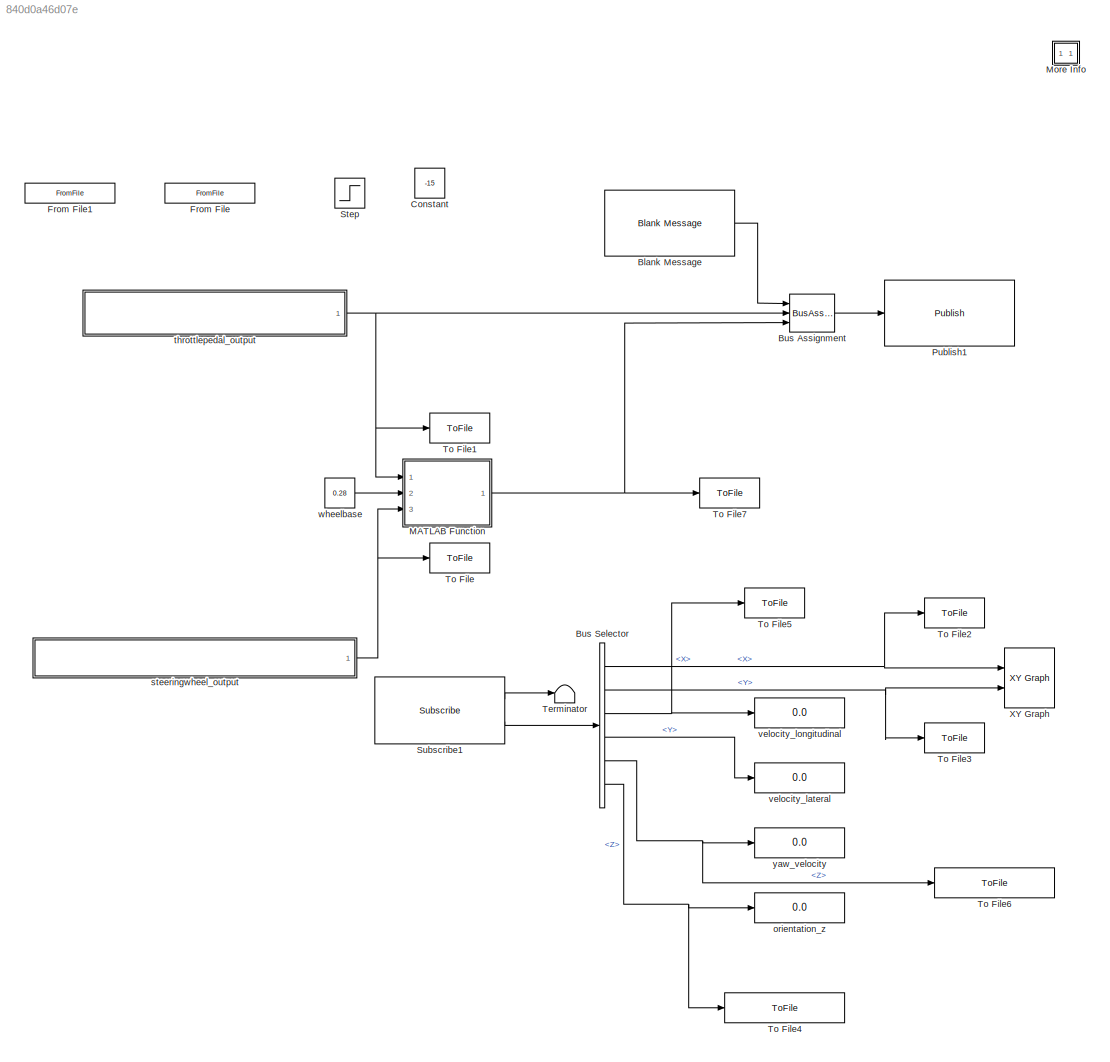
MODEL slx_840d0a46d07e
KIND model
CONFIG AbsTol = auto
CONFIG EnableMultiTasking = on
CONFIG FixedStep = 0.01
CONFIG MaxStep = auto
CONFIG MinStep = auto
CONFIG RelTol = 1e-3
CONFIG SampleTimeConstraint = Unconstrained
CONFIG Solver = FixedStepDiscrete
CONFIG SolverName = FixedStepDiscrete
CONFIG StartTime = 0.0
CONFIG StopTime = Inf
BLOCK [Reference] Blank Message  REF=robotlib/Blank Message
  Ports = [0, 1]
  SourceBlock = robotlib/Blank Message
  SourceProductBaseCode = RR
  SourceProductName = ROS Toolbox
  SourceType = ROS Blank Message
BLOCK [BusAssignment] Bus Assignment
  AssignedSignals = Linear.X,Angular.Z
  DialogController = Simulink.DDGSource_BusAssignment
  Ports = [3, 1]
BLOCK [BusSelector] Bus Selector
  DialogController = Simulink.DDGSource_BusSelector
  OutputAsBus = off
  OutputSignals = Pose.Pose.Position.X,Pose.Pose.Position.Y,Twist.Twist.Linear.X,Twist.Twist.Linear.Y,Twist.Twist.Angular.Z,Pose.Pose.Orientation.Z
  Ports = [1, 6]
BLOCK [Constant] Constant
  Commented = on
  Value = -15
BLOCK [FromFile] From File
  Commented = on
  FileName = throttle_save_repeat.mat
BLOCK [FromFile] From File1
  Commented = on
  FileName = steer_save_repeat.mat
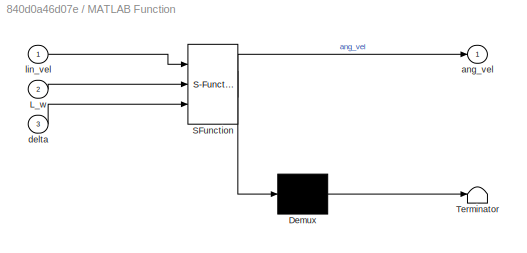
BLOCK [SubSystem] MATLAB Function
  ErrorFcn = Stateflow.Translate.translate
  PermitHierarchicalResolution = ExplicitOnly
  Ports = [3, 1]
  RequestExecContextInheritance = off
  SFBlockType = MATLAB Function
  TreatAsAtomicUnit = on
BLOCK [Demux] MATLAB Function/ Demux 
  Outputs = 1
  Ports = [1, 1]
BLOCK [S-Function] MATLAB Function/ SFunction 
  EnableBusSupport = on
  FunctionName = sf_sfun
  PortCounts = [3 2]
  Ports = [3, 2]
  SFcnIsStateOwnerBlock = off
  SFunctionDeploymentMode = off
  Tag = Stateflow S-Function 2
BLOCK [Terminator] MATLAB Function/ Terminator 
BLOCK [Inport] MATLAB Function/L_w
  IconDisplay = Port number
  Port = 2
BLOCK [Outport] MATLAB Function/ang_vel
  IconDisplay = Port number
BLOCK [Inport] MATLAB Function/delta
  IconDisplay = Port number
  Port = 3
BLOCK [Inport] MATLAB Function/lin_vel
  IconDisplay = Port number
BLOCK [SubSystem] More Info
  OpenFcn = showdemo(bdroot(gcb))
  Ports = []
  RequestExecContextInheritance = off
BLOCK [Reference] Publish1  REF=robotlib/Publish
  Ports = [1]
  SourceBlock = robotlib/Publish
  SourceProductBaseCode = RR
  SourceProductName = ROS Toolbox
  SourceType = ROS Publish
BLOCK [Step] Step
  After = 0.5
  Commented = on
  SampleTime = 0
  Time = 10
BLOCK [Reference] Subscribe1  REF=robotlib/Subscribe
  Ports = [0, 2]
  SourceBlock = robotlib/Subscribe
  SourceProductBaseCode = RR
  SourceProductName = ROS Toolbox
  SourceType = ROS Subscribe
BLOCK [Terminator] Terminator
BLOCK [ToFile] To File
  Filename = steer_save_2.mat
  MatrixName = steer_save
  Ports = [1]
BLOCK [ToFile] To File1
  Filename = throttle_save_2.mat
  MatrixName = throttle_save
  Ports = [1]
BLOCK [ToFile] To File2
  Filename = x_kincom.mat
  MatrixName = x_line
  Ports = [1]
BLOCK [ToFile] To File3
  Filename = y_kincom.mat
  MatrixName = y_line
  Ports = [1]
BLOCK [ToFile] To File4
  Filename = theta_kincom.mat
  MatrixName = theta
  Ports = [1]
BLOCK [ToFile] To File5
  Filename = vel_kincom.mat
  MatrixName = vel
  Ports = [1]
BLOCK [ToFile] To File6
  Filename = yaw_kincom.mat
  MatrixName = yaw
  Ports = [1]
BLOCK [ToFile] To File7
  Filename = ang_vel_kincom.mat
  MatrixName = ang_vel
  Ports = [1]
BLOCK [Reference] XY Graph  REF=simulink/Sinks/XY Graph
  Ports = [2]
  SourceBlock = simulink/Sinks/XY Graph
  SourceProductBaseCode = SL
  SourceProductName = Simulink
  SourceType = XY scope.
BLOCK [Display] orientation_z
  Decimation = 1
  Ports = [1]
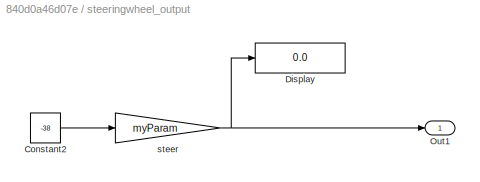
BLOCK [SubSystem] steeringwheel_output
  Ports = [0, 1]
  RequestExecContextInheritance = off
BLOCK [Constant] steeringwheel_output/Constant2
  Value = -38
BLOCK [Display] steeringwheel_output/Display
  Decimation = 1
  Ports = [1]
BLOCK [Outport] steeringwheel_output/Out1
  IconDisplay = Port number
BLOCK [Gain] steeringwheel_output/steer 
  Gain = myParam
  OutDataTypeStr = Inherit: Inherit via internal rule
  ParamDataTypeStr = Inherit: Inherit via internal rule
  SaturateOnIntegerOverflow = off
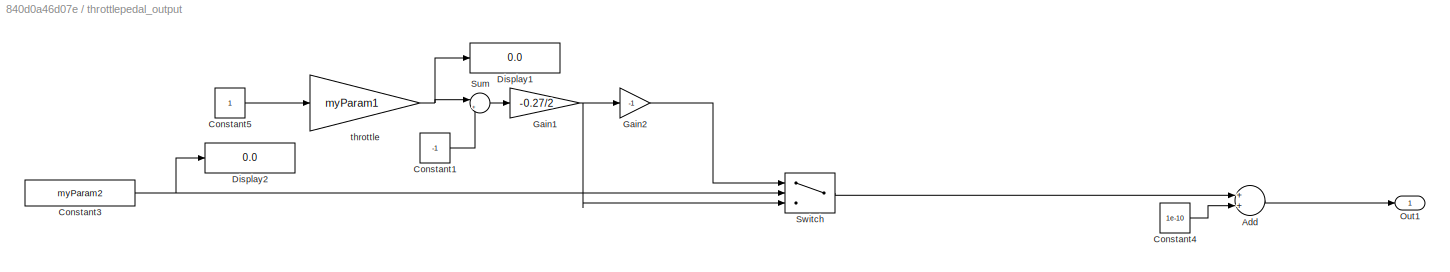
BLOCK [SubSystem] throttlepedal_output
  Ports = [0, 1]
  RequestExecContextInheritance = off
BLOCK [Sum] throttlepedal_output/Add
  InputSameDT = off
  OutDataTypeStr = Inherit: Inherit via internal rule
  Ports = [2, 1]
  SaturateOnIntegerOverflow = off
BLOCK [Constant] throttlepedal_output/Constant1
  Value = -1
BLOCK [Constant] throttlepedal_output/Constant3
  Value = myParam2
BLOCK [Constant] throttlepedal_output/Constant4
  Value = 1e-10
BLOCK [Constant] throttlepedal_output/Constant5
BLOCK [Display] throttlepedal_output/Display1
  Decimation = 1
  Ports = [1]
BLOCK [Display] throttlepedal_output/Display2
  Decimation = 1
  Ports = [1]
BLOCK [Gain] throttlepedal_output/Gain1
  Gain = -0.27/2
  OutDataTypeStr = Inherit: Inherit via internal rule
  ParamDataTypeStr = Inherit: Inherit via internal rule
  SaturateOnIntegerOverflow = off
BLOCK [Gain] throttlepedal_output/Gain2
  Gain = -1
  OutDataTypeStr = Inherit: Inherit via internal rule
  ParamDataTypeStr = Inherit: Inherit via internal rule
  SaturateOnIntegerOverflow = off
BLOCK [Outport] throttlepedal_output/Out1
  IconDisplay = Port number
BLOCK [Sum] throttlepedal_output/Sum
  IconShape = round
  InputSameDT = off
  Inputs = |++
  OutDataTypeStr = Inherit: Inherit via internal rule
  Ports = [2, 1]
  SaturateOnIntegerOverflow = off
BLOCK [Switch] throttlepedal_output/Switch
  Criteria = u2 > Threshold
  InputSameDT = off
  SaturateOnIntegerOverflow = off
BLOCK [Gain] throttlepedal_output/throttle
  Gain = myParam1
  OutDataTypeStr = Inherit: Inherit via internal rule
  ParamDataTypeStr = Inherit: Inherit via internal rule
  SaturateOnIntegerOverflow = off
BLOCK [Display] velocity_lateral
  Decimation = 1
  Ports = [1]
BLOCK [Display] velocity_longitudinal
  Decimation = 1
  Ports = [1]
BLOCK [Constant] wheelbase
  Value = 0.28
BLOCK [Display] yaw_velocity
  Decimation = 1
  Ports = [1]
LINE Blank Message:1 -> Bus Assignment:1
LINE Bus Assignment:1 -> Publish1:1
NET Bus Selector:1 -> To File2:1, XY Graph:1
NET Bus Selector:2 -> To File3:1, XY Graph:2
NET Bus Selector:3 -> To File5:1, velocity_longitudinal:1
LINE Bus Selector:4 -> velocity_lateral:1
NET Bus Selector:5 -> To File6:1, yaw_velocity:1
NET Bus Selector:6 -> To File4:1, orientation_z:1
NET MATLAB Function:1 -> Bus Assignment:3, To File7:1
LINE Subscribe1:1 -> Terminator:1
LINE Subscribe1:2 -> Bus Selector:1
LINE steeringwheel_output/Constant2:1 -> steeringwheel_output/steer :1
NET steeringwheel_output/steer :1 -> steeringwheel_output/Display:1, steeringwheel_output/Out1:1
NET steeringwheel_output:1 -> MATLAB Function:3, To File:1
LINE throttlepedal_output/Add:1 -> throttlepedal_output/Out1:1
LINE throttlepedal_output/Constant1:1 -> throttlepedal_output/Sum:2
NET throttlepedal_output/Constant3:1 -> throttlepedal_output/Display2:1, throttlepedal_output/Switch:2
LINE throttlepedal_output/Constant4:1 -> throttlepedal_output/Add:2
LINE throttlepedal_output/Constant5:1 -> throttlepedal_output/throttle:1
NET throttlepedal_output/Gain1:1 -> throttlepedal_output/Gain2:1, throttlepedal_output/Switch:3
LINE throttlepedal_output/Gain2:1 -> throttlepedal_output/Switch:1
LINE throttlepedal_output/Sum:1 -> throttlepedal_output/Gain1:1
LINE throttlepedal_output/Switch:1 -> throttlepedal_output/Add:1
NET throttlepedal_output/throttle:1 -> throttlepedal_output/Display1:1, throttlepedal_output/Sum:1
NET throttlepedal_output:1 -> Bus Assignment:2, MATLAB Function:1, To File1:1
LINE wheelbase:1 -> MATLAB Function:2
note: NET lines group one-source signal fan-out (src -> all destinations, sorted); 1:1 wires keep LINE
CHART MATLAB Function states=1 transitions=1
  STATE_LABEL 'eML_blk_kernel()'
  STATE_LABEL 'SCRIPT:\nfunction ang_vel = fcn(lin_vel,L_w,delta)\n\nang_vel=lin_vel/(L_w/tand(delta));\n'
